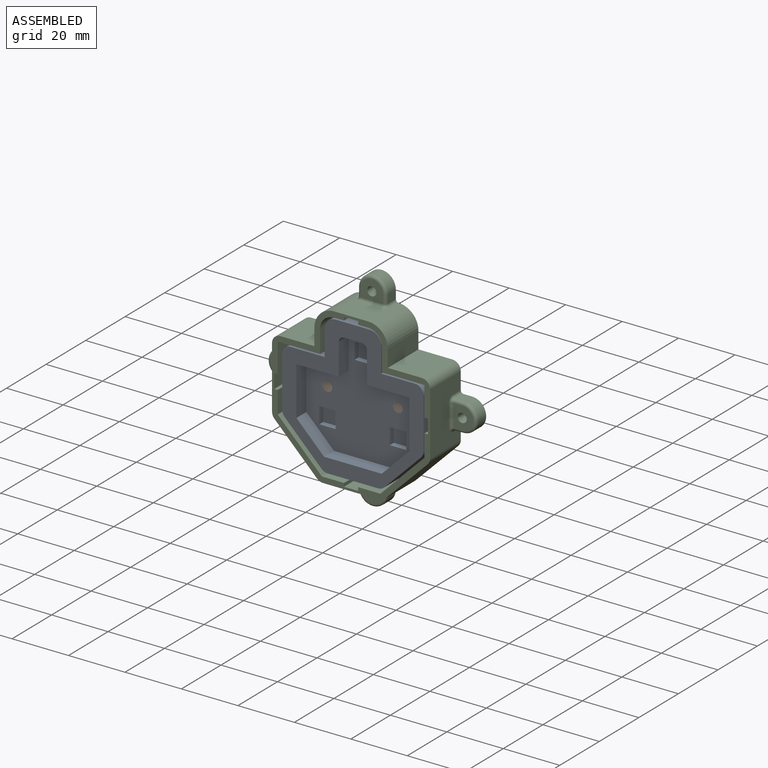
[diagram: assembled view]
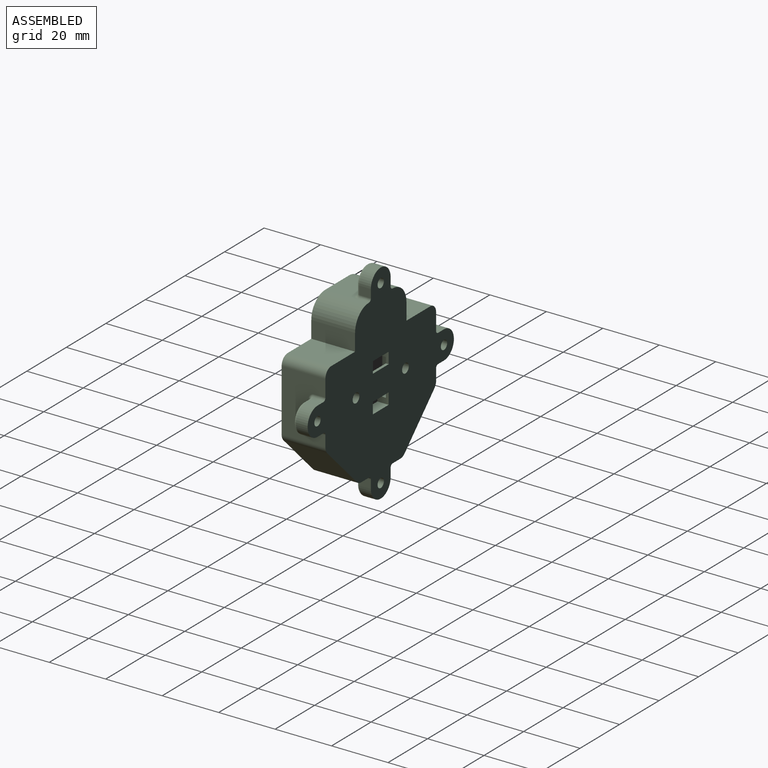
[diagram: assembled view, second angle]
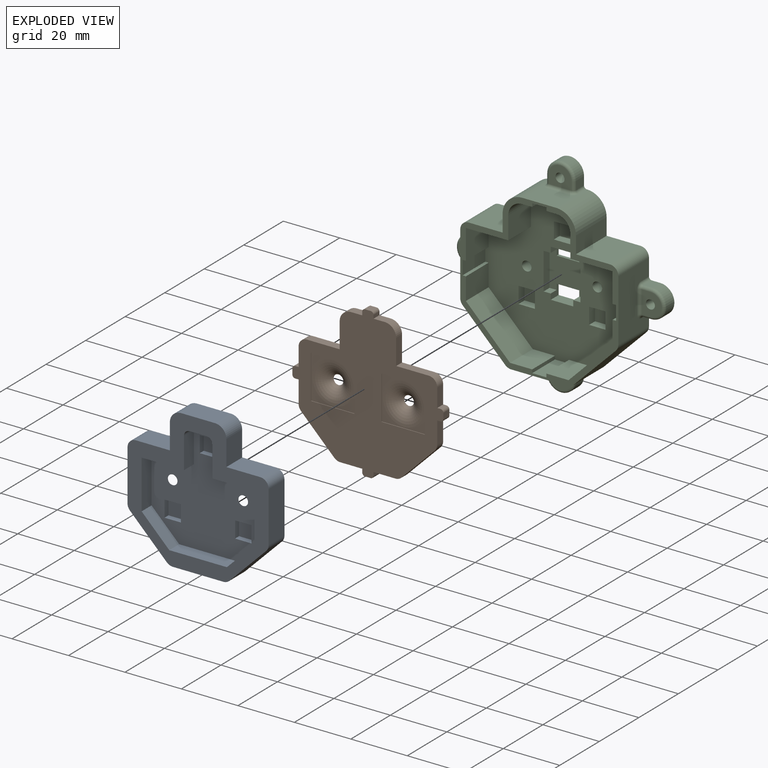
[diagram: exploded view]
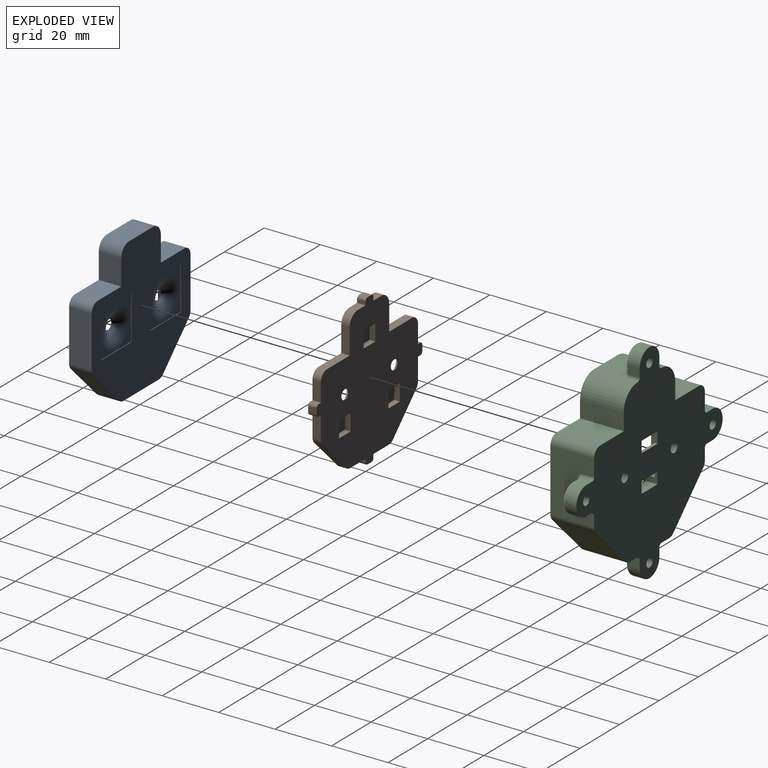
[diagram: exploded view, second angle]
ASSEMBLY  parts=3 mates=2
PART A: 60 faces, bbox 50x8x50 mm
  f0: plane 40x40mm, normal (0,-1,0), area 993.2mm2, adj f14,f15,f16,f17,f18,f19,f20,f21
  f1: plane 50x50mm, normal (0,1,0), area 1405.1mm2, adj f2,f3,f4,f5,f6,f7,f8,f9
  f2: plane 17.91x8mm, normal (0,0,-1), area 143.3mm2, adj f1,f26,f39,f40
  f3: plane 13.04x13.04mm, normal (0.71,0,-0.71), area 147.6mm2, adj f1,f26,f40,f41
  f4: plane 17.96x8mm, normal (1,0,0), area 143.7mm2, adj f1,f26,f41,f42
  f5: plane 12x8mm, normal (0,0,1), area 96mm2, adj f1,f6,f26,f42
  f6: plane 9x8mm, normal (1,0,0), area 72mm2, adj f1,f5,f7,f26
  f7: cylinder r=4mm len=8mm, axis (0,1,0), area 50.3mm2, adj f1,f6,f8,f26
  f8: plane 12x8mm, normal (0,0,1), area 96mm2, adj f1,f7,f9,f26
  f9: cylinder r=4mm len=8mm, axis (0,1,0), area 50.3mm2, adj f1,f8,f10,f26
  f10: plane 9x8mm, normal (-1,0,0), area 72mm2, adj f1,f9,f11,f26
  f11: plane 12x8mm, normal (0,0,1), area 96mm2, adj f1,f10,f26,f37
  f12: plane 17.96x8mm, normal (-1,0,0), area 143.7mm2, adj f1,f26,f37,f38
  f13: plane 13.04x13.04mm, normal (-0.71,0,-0.71), area 147.6mm2, adj f1,f26,f38,f39
  f14: plane 15x5mm, normal (0,0,-1), area 75mm2, adj f0,f15,f25,f26
  f15: plane 11x5mm, normal (1,0,0), area 55mm2, adj f0,f14,f16,f26
  f16: cylinder r=2mm len=5mm, axis (0,1,0), area 15.7mm2, adj f0,f15,f17,f26
  f17: plane 6x5mm, normal (0,0,-1), area 30mm2, adj f0,f16,f18,f26
  f18: cylinder r=2mm len=5mm, axis (0,1,0), area 15.7mm2, adj f0,f17,f19,f26
  f19: plane 11x5mm, normal (-1,0,0), area 55mm2, adj f0,f18,f20,f26
  f20: plane 15x5mm, normal (0,0,-1), area 75mm2, adj f0,f19,f21,f26
  f21: plane 17.2x5mm, normal (-1,0,0), area 86mm2, adj f0,f20,f22,f26
  f22: plane 9.8x9.8mm, normal (-0.71,0,0.71), area 69.3mm2, adj f0,f21,f23,f26
  f23: plane 20.4x5mm, normal (0,0,1), area 102mm2, adj f0,f22,f24,f26
  f24: plane 9.8x9.8mm, normal (0.71,0,0.71), area 69.3mm2, adj f0,f23,f25,f26
  f25: plane 17.2x5mm, normal (1,0,0), area 86mm2, adj f0,f14,f24,f26
  f26: plane 50x50mm, normal (0,-1,0), area 767.2mm2, adj f2,f3,f4,f5,f6,f7,f8,f9
  f27: plane 15.4x0.2mm, normal (0,0,-1), area 3.1mm2, adj f1,f28,f30,f31
  f28: plane 15.4x0.2mm, normal (-1,0,0), area 3.1mm2, adj f1,f27,f29,f31
  f29: plane 15.4x0.2mm, normal (0,0,1), area 3.1mm2, adj f1,f28,f30,f31
  f30: plane 15.4x0.2mm, normal (1,0,0), area 3.1mm2, adj f1,f27,f29,f31
  f31: plane 15.4x15.4mm, normal (0,1,0), area 69.7mm2, adj f27,f28,f29,f30,f58
  f32: plane 15.4x0.2mm, normal (1,0,0), area 3.1mm2, adj f1,f33,f35,f36
  f33: plane 15.4x0.2mm, normal (0,0,-1), area 3.1mm2, adj f1,f32,f34,f36
  f34: plane 15.4x0.2mm, normal (-1,0,0), area 3.1mm2, adj f1,f33,f35,f36
  f35: plane 15.4x0.2mm, normal (0,0,1), area 3.1mm2, adj f1,f32,f34,f36
  f36: plane 15.4x15.4mm, normal (0,1,0), area 69.7mm2, adj f32,f33,f34,f35,f59
  f37: cylinder r=3mm len=8mm, axis (0,-1,0), area 37.7mm2, adj f1,f11,f12,f26
  f38: cylinder r=3mm len=8mm, axis (0,1,0), area 18.8mm2, adj f1,f12,f13,f26
  f39: cylinder r=3mm len=8mm, axis (0,1,0), area 18.8mm2, adj f1,f2,f13,f26
  f40: cylinder r=3mm len=8mm, axis (0,1,0), area 18.8mm2, adj f1,f2,f3,f26
  f41: cylinder r=3mm len=8mm, axis (0,-1,0), area 18.8mm2, adj f1,f3,f4,f26
  f42: cylinder r=3mm len=8mm, axis (0,1,0), area 37.7mm2, adj f1,f4,f5,f26
  f43: plane 5.8x2mm, normal (0,0,-1), area 11.6mm2, adj f0,f44,f46,f47
  f44: plane 5.8x2mm, normal (1,0,0), area 11.6mm2, adj f0,f43,f45,f47
  f45: plane 5.8x2mm, normal (0,0,1), area 11.6mm2, adj f0,f44,f46,f47
  f46: plane 5.8x2mm, normal (-1,0,0), area 11.6mm2, adj f0,f43,f45,f47
  f47: plane 5.8x5.8mm, normal (0,-1,0), area 33.6mm2, adj f43,f44,f45,f46
  f48: plane 5.8x2mm, normal (0,0,1), area 11.6mm2, adj f0,f49,f51,f52
  f49: plane 5.8x2mm, normal (-1,0,0), area 11.6mm2, adj f0,f48,f50,f52
  f50: plane 5.8x2mm, normal (0,0,-1), area 11.6mm2, adj f0,f49,f51,f52
  f51: plane 5.8x2mm, normal (1,0,0), area 11.6mm2, adj f0,f48,f50,f52
  f52: plane 5.8x5.8mm, normal (0,-1,0), area 33.6mm2, adj f48,f49,f50,f51
  f53: plane 5.8x2mm, normal (0,0,-1), area 11.6mm2, adj f0,f54,f56,f57
  f54: plane 5.8x2mm, normal (1,0,0), area 11.6mm2, adj f0,f53,f55,f57
  f55: plane 5.8x2mm, normal (0,0,1), area 11.6mm2, adj f0,f54,f56,f57
  f56: plane 5.8x2mm, normal (-1,0,0), area 11.6mm2, adj f0,f53,f55,f57
  f57: plane 5.8x5.8mm, normal (0,-1,0), area 33.6mm2, adj f53,f54,f55,f56
  f58: torus R=7.3mm, axis (0,1,0), area 174.6mm2, adj f0,f31
  f59: torus R=7.3mm, axis (0,1,0), area 174.6mm2, adj f0,f36
PART B: 71 faces, bbox 53.5x7.2x53.5 mm
  f0: plane 53.5x53.5mm, normal (0,-1,0), area 1397.6mm2, adj f2,f3,f4,f5,f6,f7,f8,f9
  f1: plane 53.5x53.5mm, normal (0,1,0), area 1752.8mm2, adj f2,f3,f4,f5,f6,f7,f8,f9
  f2: plane 6.55x3mm, normal (-1,0,0), area 19.7mm2, adj f0,f1,f3,f32
  f3: plane 3x1.2mm, normal (0,0,1), area 3.6mm2, adj f0,f1,f2,f69
  f4: plane 3x2mm, normal (-1,0,0), area 6mm2, adj f0,f1,f69,f70
  f5: plane 3x1.2mm, normal (0,0,-1), area 3.6mm2, adj f0,f1,f6,f70
  f6: plane 7.8x3mm, normal (-1,0,0), area 23.4mm2, adj f0,f1,f5,f30
  f7: plane 11.75x11.75mm, normal (-0.71,0,-0.71), area 49.9mm2, adj f0,f1,f30,f31
  f8: plane 7.8x3mm, normal (0,0,-1), area 23.4mm2, adj f0,f1,f9,f31
  f9: plane 3x1.2mm, normal (-1,0,0), area 3.6mm2, adj f0,f1,f8,f67
  f10: plane 3x2mm, normal (0,0,-1), area 6mm2, adj f0,f1,f67,f68
  f11: plane 3x1.2mm, normal (1,0,0), area 3.6mm2, adj f0,f1,f12,f68
  f12: plane 7.8x3mm, normal (0,0,-1), area 23.4mm2, adj f0,f1,f11,f33
  f13: plane 11.75x11.75mm, normal (0.71,0,-0.71), area 49.9mm2, adj f0,f1,f33,f34
  f14: plane 7.8x3mm, normal (1,0,0), area 23.4mm2, adj f0,f1,f15,f34
  f15: plane 3x1.2mm, normal (0,0,-1), area 3.6mm2, adj f0,f1,f14,f65
  f16: plane 3x2mm, normal (1,0,0), area 6mm2, adj f0,f1,f65,f66
  f17: plane 3x1.2mm, normal (0,0,1), area 3.6mm2, adj f0,f1,f18,f66
  f18: plane 6.55x3mm, normal (1,0,0), area 19.7mm2, adj f0,f1,f17,f35
  f19: plane 11.55x3mm, normal (0,0,1), area 34.6mm2, adj f0,f1,f20,f35
  f20: plane 9x3mm, normal (1,0,0), area 27mm2, adj f0,f1,f19,f21
  f21: cylinder r=4mm len=4mm, axis (0,1,0), area 18.8mm2, adj f0,f1,f20,f22
  f22: plane 4x3mm, normal (0,0,1), area 12mm2, adj f0,f1,f21,f23
  f23: plane 3x1.2mm, normal (1,0,0), area 3.6mm2, adj f0,f1,f22,f63
  f24: plane 3x2mm, normal (0,0,1), area 6mm2, adj f0,f1,f63,f64
  f25: plane 3x1.2mm, normal (-1,0,0), area 3.6mm2, adj f0,f1,f26,f64
  f26: plane 4x3mm, normal (0,0,1), area 12mm2, adj f0,f1,f25,f27
  f27: cylinder r=4mm len=4mm, axis (0,1,0), area 18.8mm2, adj f0,f1,f26,f28
  f28: plane 9x3mm, normal (-1,0,0), area 27mm2, adj f0,f1,f27,f29
  f29: plane 11.55x3mm, normal (0,0,1), area 34.6mm2, adj f0,f1,f28,f32
  f30: cylinder r=3mm len=3mm, axis (0,1,0), area 7.1mm2, adj f0,f1,f6,f7
  f31: cylinder r=3mm len=3mm, axis (0,1,0), area 7.1mm2, adj f0,f1,f7,f8
  f32: cylinder r=3mm len=3mm, axis (0,-1,0), area 14.1mm2, adj f0,f1,f2,f29
  f33: cylinder r=3mm len=3mm, axis (0,1,0), area 7.1mm2, adj f0,f1,f12,f13
  f34: cylinder r=3mm len=3mm, axis (0,-1,0), area 7.1mm2, adj f0,f1,f13,f14
  f35: cylinder r=3mm len=3mm, axis (0,1,0), area 14.1mm2, adj f0,f1,f18,f19
  f36: plane 5.8x2mm, normal (0,0,1), area 11.6mm2, adj f1,f37,f39,f40
  f37: plane 5.8x2mm, normal (1,0,0), area 11.6mm2, adj f1,f36,f38,f40
  f38: plane 5.8x2mm, normal (0,0,-1), area 11.6mm2, adj f1,f37,f39,f40
  f39: plane 5.8x2mm, normal (-1,0,0), area 11.6mm2, adj f1,f36,f38,f40
  f40: plane 5.8x5.8mm, normal (0,1,0), area 33.6mm2, adj f36,f37,f38,f39
  f41: plane 5.8x2mm, normal (0,0,1), area 11.6mm2, adj f1,f42,f44,f45
  f42: plane 5.8x2mm, normal (1,0,0), area 11.6mm2, adj f1,f41,f43,f45
  f43: plane 5.8x2mm, normal (0,0,-1), area 11.6mm2, adj f1,f42,f44,f45
  f44: plane 5.8x2mm, normal (-1,0,0), area 11.6mm2, adj f1,f41,f43,f45
  f45: plane 5.8x5.8mm, normal (0,1,0), area 33.6mm2, adj f41,f42,f43,f44
  f46: plane 5.8x2mm, normal (-1,0,0), area 11.6mm2, adj f1,f47,f49,f50
  f47: plane 5.8x2mm, normal (0,0,1), area 11.6mm2, adj f1,f46,f48,f50
  f48: plane 5.8x2mm, normal (1,0,0), area 11.6mm2, adj f1,f47,f49,f50
  f49: plane 5.8x2mm, normal (0,0,-1), area 11.6mm2, adj f1,f46,f48,f50
  f50: plane 5.8x5.8mm, normal (0,1,0), area 33.6mm2, adj f46,f47,f48,f49
  f51: plane 15.4x0.2mm, normal (0,0,-1), area 3.1mm2, adj f0,f52,f54,f55
  f52: plane 15.4x0.2mm, normal (1,0,0), area 3.1mm2, adj f0,f51,f53,f55
  f53: plane 15.4x0.2mm, normal (0,0,1), area 3.1mm2, adj f0,f52,f54,f55
  f54: plane 15.4x0.2mm, normal (-1,0,0), area 3.1mm2, adj f0,f51,f53,f55
  f55: plane 15.4x15.4mm, normal (0,-1,0), area 69.7mm2, adj f51,f52,f53,f54,f61
  f56: plane 15.4x0.2mm, normal (-1,0,0), area 3.1mm2, adj f0,f57,f59,f60
  f57: plane 15.4x0.2mm, normal (0,0,-1), area 3.1mm2, adj f0,f56,f58,f60
  f58: plane 15.4x0.2mm, normal (1,0,0), area 3.1mm2, adj f0,f57,f59,f60
  f59: plane 15.4x0.2mm, normal (0,0,1), area 3.1mm2, adj f0,f56,f58,f60
  f60: plane 15.4x15.4mm, normal (0,-1,0), area 69.7mm2, adj f56,f57,f58,f59,f62
  f61: torus R=7.3mm, axis (0,-1,0), area 174.6mm2, adj f1,f55
  f62: torus R=7.3mm, axis (0,-1,0), area 174.6mm2, adj f1,f60
  f63: cylinder r=1mm len=3mm, axis (0,1,0), area 4.7mm2, adj f0,f1,f23,f24
  f64: cylinder r=1mm len=3mm, axis (0,-1,0), area 4.7mm2, adj f0,f1,f24,f25
  f65: cylinder r=1mm len=3mm, axis (0,-1,0), area 4.7mm2, adj f0,f1,f15,f16
  f66: cylinder r=1mm len=3mm, axis (0,1,0), area 4.7mm2, adj f0,f1,f16,f17
  f67: cylinder r=1mm len=3mm, axis (0,1,0), area 4.7mm2, adj f0,f1,f9,f10
  f68: cylinder r=1mm len=3mm, axis (0,-1,0), area 4.7mm2, adj f0,f1,f10,f11
  f69: cylinder r=1mm len=3mm, axis (0,-1,0), area 4.7mm2, adj f0,f1,f3,f4
  f70: cylinder r=1mm len=3mm, axis (0,1,0), area 4.7mm2, adj f0,f1,f4,f5
PART C: 133 faces, bbox 74.8x15.5x74.8 mm
  f0: plane 12x11.5mm, normal (0,0,1), area 115.7mm2, adj f6,f17,f18,f119,f121,f123
  f1: plane 21.96x15.5mm, normal (1,0,0), area 270.1mm2, adj f6,f12,f79,f80,f109,f111,f113,f115
  f2: plane 11.5x7.87mm, normal (0,0,1), area 90.5mm2, adj f6,f7,f62,f72
  f3: plane 11.5x7.87mm, normal (1,0,0), area 90.5mm2, adj f6,f7,f52,f71
  f4: plane 11.5x3.5mm, normal (0,0,-1), area 40.2mm2, adj f6,f7,f58,f63
  f5: plane 11.5x7.87mm, normal (-1,0,0), area 90.5mm2, adj f6,f7,f62,f67
  f6: plane 56x56mm, normal (0,-1,0), area 355.1mm2, adj f0,f1,f2,f3,f4,f5,f13,f14
  f7: plane 54.4x54.4mm, normal (0,-1,0), area 1762.9mm2, adj f2,f3,f4,f5,f10,f11,f23,f24
  f8: plane 8x1mm, normal (0,0,-1), area 8mm2, adj f12,f25,f27,f35
  f9: plane 8x1mm, normal (0,0,1), area 8mm2, adj f10,f11,f12,f35
  f10: plane 4x4mm, normal (-1,0,0), area 10mm2, adj f7,f9,f12,f28,f31,f35
  f11: plane 4x4mm, normal (1,0,0), area 10mm2, adj f7,f9,f12,f28,f32,f35
  f12: plane 74x74mm, normal (0,1,0), area 2642.6mm2, adj f1,f8,f9,f10,f11,f13,f14,f15
  f13: plane 19.91x15.5mm, normal (0,0,-1), area 238.4mm2, adj f6,f12,f77,f78,f101,f103,f105,f107
  f14: plane 15.5x15.04mm, normal (0.71,0,-0.71), area 329.7mm2, adj f6,f12,f78,f79
  f15: plane 15.5x12mm, normal (0,0,1), area 186mm2, adj f6,f12,f16,f80
  f16: plane 15.5x6mm, normal (1,0,0), area 93mm2, adj f6,f12,f15,f17
  f17: cylinder r=7mm len=15.5mm, axis (0,1,0), area 170.4mm2, adj f0,f6,f12,f16,f124
  f18: cylinder r=7mm len=15.5mm, axis (0,1,0), area 170.4mm2, adj f0,f6,f12,f19,f117
  f19: plane 15.5x6mm, normal (-1,0,0), area 93mm2, adj f6,f12,f18,f20
  f20: plane 15.5x12mm, normal (0,0,1), area 186mm2, adj f6,f12,f19,f75
  f21: plane 21.96x15.5mm, normal (-1,0,0), area 270.1mm2, adj f6,f12,f75,f76,f125,f127,f129,f131
  f22: plane 15.5x15.04mm, normal (-0.71,0,-0.71), area 329.7mm2, adj f6,f12,f76,f77
  f23: cylinder r=1.7mm len=4mm, axis (0,1,0), area 42.7mm2, adj f7,f12
  f24: cylinder r=1.7mm len=4mm, axis (0,1,0), area 42.7mm2, adj f7,f12
  f25: plane 4x4mm, normal (1,0,0), area 10mm2, adj f7,f8,f12,f26,f34,f35
  f26: plane 8x4mm, normal (0,0,1), area 32mm2, adj f7,f12,f25,f27
  f27: plane 4x4mm, normal (-1,0,0), area 10mm2, adj f7,f8,f12,f26,f29,f35
  f28: plane 8x4mm, normal (0,0,-1), area 32mm2, adj f7,f10,f11,f12
  f29: plane 3x2.5mm, normal (0,0,1), area 7.5mm2, adj f7,f27,f30,f35
  f30: plane 13x3mm, normal (-1,0,0), area 39mm2, adj f7,f29,f31,f35
  f31: plane 3x2.5mm, normal (0,0,-1), area 7.5mm2, adj f7,f10,f30,f35
  f32: plane 3x2.5mm, normal (0,0,-1), area 7.5mm2, adj f7,f11,f33,f35
  f33: plane 13x3mm, normal (1,0,0), area 39mm2, adj f7,f32,f34,f35
  f34: plane 3x2.5mm, normal (0,0,1), area 7.5mm2, adj f7,f25,f33,f35
  f35: plane 13x13mm, normal (0,-1,0), area 137mm2, adj f8,f9,f10,f11,f25,f27,f29,f30
  f36: plane 5.8x3mm, normal (0,0,-1), area 17.4mm2, adj f7,f37,f39,f40
  f37: plane 5.8x3mm, normal (1,0,0), area 17.4mm2, adj f7,f36,f38,f40
  f38: plane 5.8x3mm, normal (0,0,1), area 17.4mm2, adj f7,f37,f39,f40
  f39: plane 5.8x3mm, normal (-1,0,0), area 17.4mm2, adj f7,f36,f38,f40
  f40: plane 5.8x5.8mm, normal (0,-1,0), area 33.6mm2, adj f36,f37,f38,f39
  f41: plane 5.8x3mm, normal (-1,0,0), area 17.4mm2, adj f7,f42,f44,f45
  f42: plane 5.8x3mm, normal (0,0,-1), area 17.4mm2, adj f7,f41,f43,f45
  f43: plane 5.8x3mm, normal (1,0,0), area 17.4mm2, adj f7,f42,f44,f45
  f44: plane 5.8x3mm, normal (0,0,1), area 17.4mm2, adj f7,f41,f43,f45
  f45: plane 5.8x5.8mm, normal (0,-1,0), area 33.6mm2, adj f41,f42,f43,f44
  f46: plane 5.8x3mm, normal (0,0,-1), area 17.4mm2, adj f7,f47,f49,f50
  f47: plane 5.8x3mm, normal (1,0,0), area 17.4mm2, adj f7,f46,f48,f50
  f48: plane 5.8x3mm, normal (0,0,1), area 17.4mm2, adj f7,f47,f49,f50
  f49: plane 5.8x3mm, normal (-1,0,0), area 17.4mm2, adj f7,f46,f48,f50
  f50: plane 5.8x5.8mm, normal (0,-1,0), area 33.6mm2, adj f46,f47,f48,f49
  f51: plane 11.5x7.87mm, normal (0,0,1), area 90.5mm2, adj f6,f7,f52,f73
  f52: plane 15.63x15.63mm, normal (0.71,0,0.71), area 254.2mm2, adj f3,f6,f7,f51
  f53: plane 11.5x10.5mm, normal (1,0,0), area 120.7mm2, adj f6,f7,f54,f69
  f54: plane 15x11.5mm, normal (0,0,-1), area 172.5mm2, adj f6,f7,f53,f55
  f55: plane 11.5x8mm, normal (1,0,0), area 92mm2, adj f6,f7,f54,f56
  f56: cylinder r=5mm len=11.5mm, axis (0,1,0), area 90.3mm2, adj f6,f7,f55,f57
  f57: plane 11.5x3.5mm, normal (0,0,-1), area 40.2mm2, adj f6,f7,f56,f65
  f58: cylinder r=5mm len=11.5mm, axis (0,1,0), area 90.3mm2, adj f4,f6,f7,f59
  f59: plane 11.5x8mm, normal (-1,0,0), area 92mm2, adj f6,f7,f58,f60
  f60: plane 15x11.5mm, normal (0,0,-1), area 172.5mm2, adj f6,f7,f59,f61
  f61: plane 11.5x10.5mm, normal (-1,0,0), area 120.7mm2, adj f6,f7,f60,f66
  f62: plane 15.63x15.63mm, normal (-0.71,0,0.71), area 254.2mm2, adj f2,f5,f6,f7
  f63: plane 11.5x1.2mm, normal (-1,0,0), area 13.8mm2, adj f4,f6,f7,f64
  f64: plane 11.5x5mm, normal (0,0,-1), area 57.5mm2, adj f6,f7,f63,f65
  f65: plane 11.5x1.2mm, normal (1,0,0), area 13.8mm2, adj f6,f7,f57,f64
  f66: plane 11.5x1.2mm, normal (0,0,-1), area 13.8mm2, adj f6,f7,f61,f68
  f67: plane 11.5x1.2mm, normal (0,0,1), area 13.8mm2, adj f5,f6,f7,f68
  f68: plane 11.5x5mm, normal (-1,0,0), area 57.5mm2, adj f6,f7,f66,f67
  f69: plane 11.5x1.2mm, normal (0,0,-1), area 13.8mm2, adj f6,f7,f53,f70
  f70: plane 11.5x5mm, normal (1,0,0), area 57.5mm2, adj f6,f7,f69,f71
  f71: plane 11.5x1.2mm, normal (0,0,1), area 13.8mm2, adj f3,f6,f7,f70
  f72: plane 11.5x1.2mm, normal (-1,0,0), area 13.8mm2, adj f2,f6,f7,f74
  f73: plane 11.5x1.2mm, normal (1,0,0), area 13.8mm2, adj f6,f7,f51,f74
  f74: plane 11.5x5mm, normal (0,0,1), area 57.5mm2, adj f6,f7,f72,f73
  f75: cylinder r=3mm len=15.5mm, axis (0,-1,0), area 73mm2, adj f6,f12,f20,f21
  f76: cylinder r=3mm len=15.5mm, axis (0,1,0), area 36.5mm2, adj f6,f12,f21,f22
  f77: cylinder r=3mm len=15.5mm, axis (0,1,0), area 36.5mm2, adj f6,f12,f13,f22
  f78: cylinder r=3mm len=15.5mm, axis (0,1,0), area 36.5mm2, adj f6,f12,f13,f14
  f79: cylinder r=3mm len=15.5mm, axis (0,-1,0), area 36.5mm2, adj f1,f6,f12,f14
  f80: cylinder r=3mm len=15.5mm, axis (0,1,0), area 73mm2, adj f1,f6,f12,f15
  f81: plane 4x3mm, normal (1,0,0), area 12mm2, adj f12,f82,f122,f124
  f82: cylinder r=5mm len=10mm, axis (0,1,0), area 62.8mm2, adj f12,f81,f84,f120
  f83: cylinder r=1.6mm len=5mm, axis (0,1,0), area 50.3mm2, adj f12,f85
  f84: plane 4x3mm, normal (-1,0,0), area 12mm2, adj f12,f82,f117,f118
  f85: plane 8x7mm, normal (0,-1,0), area 41.1mm2, adj f83,f118,f120,f121,f122
  f86: plane 4x3mm, normal (-1,0,0), area 12mm2, adj f12,f87,f106,f108
  f87: cylinder r=5mm len=10mm, axis (0,1,0), area 62.8mm2, adj f12,f86,f88,f104
  f88: plane 4x3mm, normal (1,0,0), area 12mm2, adj f12,f87,f101,f102
  f89: cylinder r=1.6mm len=5mm, axis (0,1,0), area 50.3mm2, adj f12,f90
  f90: plane 8x7mm, normal (0,-1,0), area 41.1mm2, adj f89,f102,f104,f105,f106
  f91: plane 4x3mm, normal (0,0,1), area 12mm2, adj f12,f92,f130,f132
  f92: cylinder r=5mm len=10mm, axis (0,1,0), area 62.8mm2, adj f12,f91,f93,f128
  f93: plane 4x3mm, normal (0,0,-1), area 12mm2, adj f12,f92,f125,f126
  f94: cylinder r=1.6mm len=5mm, axis (0,1,0), area 50.3mm2, adj f12,f95
  f95: plane 8x7mm, normal (0,-1,0), area 41.1mm2, adj f94,f126,f128,f129,f130
  f96: plane 4x3mm, normal (0,0,1), area 12mm2, adj f12,f99,f109,f110
  f97: plane 4x3mm, normal (0,0,-1), area 12mm2, adj f12,f99,f114,f116
  f98: cylinder r=1.6mm len=5mm, axis (0,1,0), area 50.3mm2, adj f12,f100
  f99: cylinder r=5mm len=10mm, axis (0,1,0), area 62.8mm2, adj f12,f96,f97,f112
  f100: plane 8x7mm, normal (0,-1,0), area 41.1mm2, adj f98,f110,f112,f113,f114
  f101: cylinder r=1mm len=4mm, axis (0,-1,0), area 6.3mm2, adj f12,f13,f88,f103
  f102: cylinder r=1mm len=3mm, axis (0,0,-1), area 4.7mm2, adj f88,f90,f103,f104
  f103: torus R=2mm, axis (0,0,1), area 3.4mm2, adj f13,f101,f102,f105
  f104: torus R=4mm, axis (0,-1,0), area 22.9mm2, adj f87,f90,f102,f106
  f105: cylinder r=1mm len=8mm, axis (1,0,0), area 12.6mm2, adj f13,f90,f103,f107
  f106: cylinder r=1mm len=3mm, axis (0,0,1), area 4.7mm2, adj f86,f90,f104,f107
  f107: torus R=2mm, axis (0,0,1), area 3.4mm2, adj f13,f105,f106,f108
  f108: cylinder r=1mm len=4mm, axis (0,1,0), area 6.3mm2, adj f12,f13,f86,f107
  f109: cylinder r=1mm len=4mm, axis (0,1,0), area 6.3mm2, adj f1,f12,f96,f111
  f110: cylinder r=1mm len=3mm, axis (1,0,0), area 4.7mm2, adj f96,f100,f111,f112
  f111: torus R=2mm, axis (1,0,0), area 3.4mm2, adj f1,f109,f110,f113
  f112: torus R=4mm, axis (0,-1,0), area 22.9mm2, adj f99,f100,f110,f114
  f113: cylinder r=1mm len=8mm, axis (0,0,1), area 12.6mm2, adj f1,f100,f111,f115
  f114: cylinder r=1mm len=3mm, axis (-1,0,0), area 4.7mm2, adj f97,f100,f112,f115
  f115: torus R=2mm, axis (1,0,0), area 3.4mm2, adj f1,f113,f114,f116
  f116: cylinder r=1mm len=4mm, axis (0,-1,0), area 6.3mm2, adj f1,f12,f97,f115
  f117: cylinder r=1mm len=4mm, axis (0,1,0), area 6.3mm2, adj f12,f18,f84,f119
  f118: cylinder r=1mm len=3mm, axis (0,0,1), area 4.7mm2, adj f84,f85,f119,f120
  f119: torus R=2mm, axis (0,0,1), area 3.4mm2, adj f0,f117,f118,f121
  f120: torus R=4mm, axis (0,-1,0), area 22.9mm2, adj f82,f85,f118,f122
  f121: cylinder r=1mm len=8mm, axis (-1,0,0), area 12.6mm2, adj f0,f85,f119,f123
  f122: cylinder r=1mm len=3mm, axis (0,0,-1), area 4.7mm2, adj f81,f85,f120,f123
  f123: torus R=2mm, axis (0,0,1), area 3.4mm2, adj f0,f121,f122,f124
  f124: cylinder r=1mm len=4mm, axis (0,-1,0), area 6.3mm2, adj f12,f17,f81,f123
  f125: cylinder r=1mm len=4mm, axis (0,-1,0), area 6.3mm2, adj f12,f21,f93,f127
  f126: cylinder r=1mm len=3mm, axis (-1,0,0), area 4.7mm2, adj f93,f95,f127,f128
  f127: torus R=2mm, axis (1,0,0), area 3.4mm2, adj f21,f125,f126,f129
  f128: torus R=4mm, axis (0,-1,0), area 22.9mm2, adj f92,f95,f126,f130
  f129: cylinder r=1mm len=8mm, axis (0,0,-1), area 12.6mm2, adj f21,f95,f127,f131
  f130: cylinder r=1mm len=3mm, axis (1,0,0), area 4.7mm2, adj f91,f95,f128,f131
  f131: torus R=2mm, axis (1,0,0), area 3.4mm2, adj f21,f129,f130,f132
  f132: cylinder r=1mm len=4mm, axis (0,1,0), area 6.3mm2, adj f12,f21,f91,f131
PLACE A t=(62.41,29.67,-45.84)mm
PLACE B t=(53.53,32.27,-2.33)mm
PLACE C t=(56.37,36.27,-11.25)mm
MATE fastened A.f59 <-> B.f61  axis (0,1,0) through (68.03,29.47,4.7)mm
MATE fastened B.f61 <-> C.f24  axis (0,1,0) through (68.03,32.27,4.7)mm
